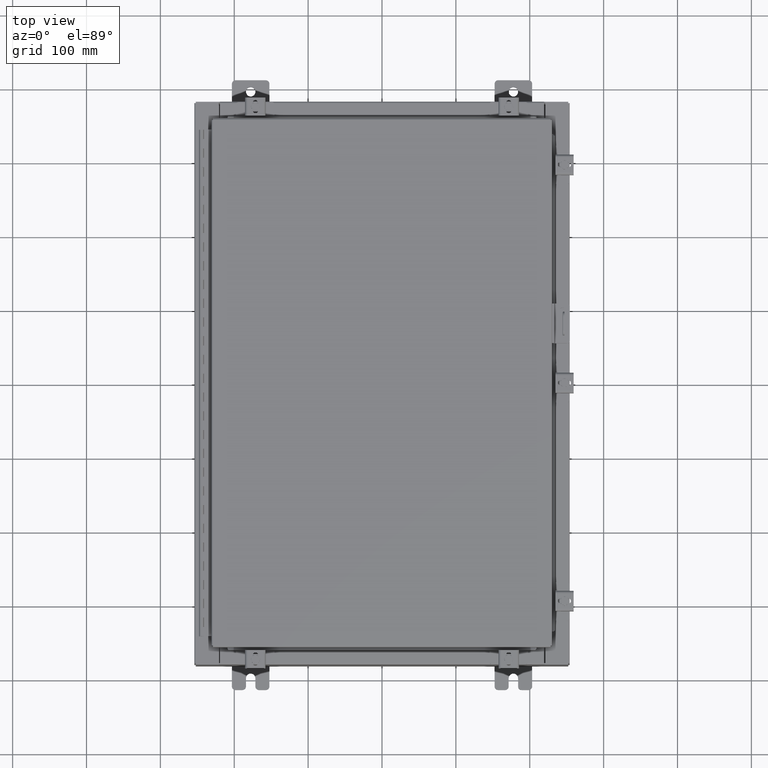
[diagram: clean part render]
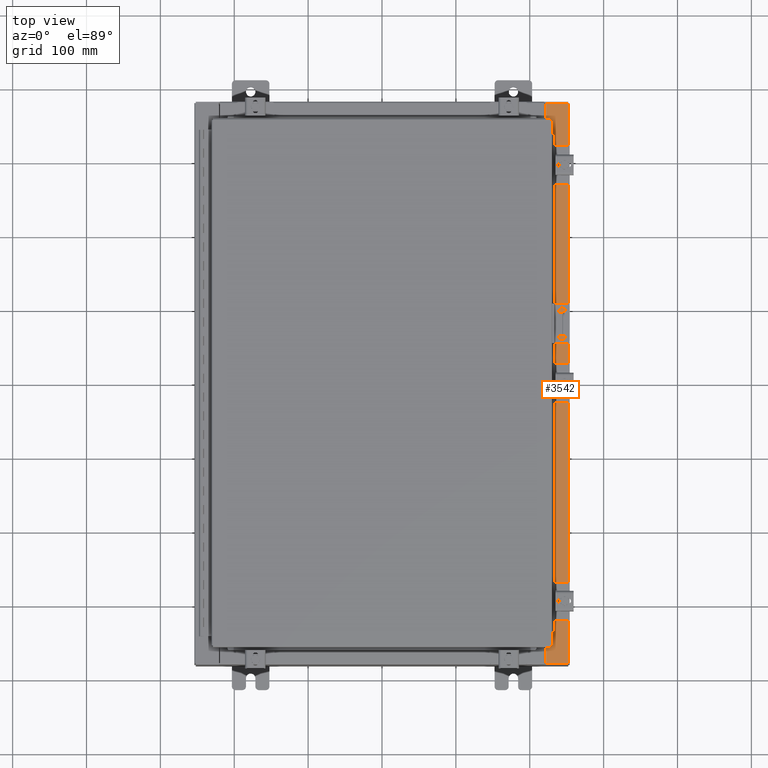
[diagram: same view with one face highlighted and labeled with its STEP entity id]
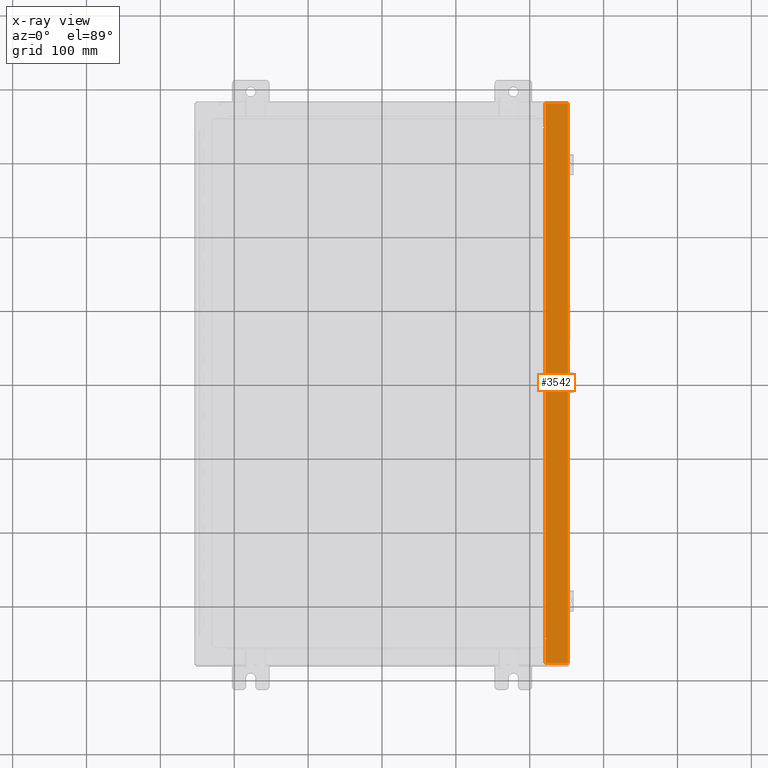
[diagram: x-ray of the same camera — body ghosted, the highlighted face saturated]
A machine part, top view. The second image highlights one B-rep face of the part: STEP entity #3542.
The next image is the same camera in x-ray: the body ghosted, the highlighted face saturated — about 0% of this face is hidden behind the body in this view.
In plain terms, the highlighted planar face has unit normal (-0, 0, -1).
Its self-contained STEP definition (entity closure, byte-faithful):
#17 = LINE ( 'NONE', #31061, #30291 ) ;
#97 = AXIS2_PLACEMENT_3D ( 'NONE', #5254, #25759, #8230 ) ;
#597 = EDGE_CURVE ( 'NONE', #18157, #23321, #25486, .T. ) ;
#844 = VECTOR ( 'NONE', #18691, 39.37007874015748100 ) ;
#959 = VERTEX_POINT ( 'NONE', #26658 ) ;
#1253 = DIRECTION ( 'NONE',  ( 1.000000000000000000, 0.0000000000000000000, 0.0000000000000000000 ) ) ;
#1660 = CARTESIAN_POINT ( 'NONE',  ( 8.750050000000021200, -13.59375000000000000, 5.925300000000009800 ) ) ;
#1833 = DIRECTION ( 'NONE',  ( 0.0000000000000000000, -1.000000000000000000, 0.0000000000000000000 ) ) ;
#2994 = ORIENTED_EDGE ( 'NONE', *, *, #13019, .T. ) ;
#3542 = ADVANCED_FACE ( 'NONE', ( #35391 ), #19665, .F. ) ;
#4178 = CARTESIAN_POINT ( 'NONE',  ( 8.699700000000019500, -13.63109999999999800, 5.925300000000009800 ) ) ;
#4904 = CARTESIAN_POINT ( 'NONE',  ( 8.699700000000019500, -13.63109999999999800, 5.925300000000009800 ) ) ;
#5179 = EDGE_CURVE ( 'NONE', #30932, #31928, #11431, .T. ) ;
#5254 = CARTESIAN_POINT ( 'NONE',  ( 8.750050000000021200, -13.61242500000000000, 5.925300000000009800 ) ) ;
#5496 = VERTEX_POINT ( 'NONE', #35802 ) ;
#6297 = CARTESIAN_POINT ( 'NONE',  ( 8.712700000000021200, 13.59375000000000900, 5.925300000000009800 ) ) ;
#6884 = CARTESIAN_POINT ( 'NONE',  ( 6.913922522753119200E-014, -14.92530000000001400, 5.925300000000072800 ) ) ;
#7024 = DIRECTION ( 'NONE',  ( 1.000000000000000000, 1.783190596386595000E-015, -7.132762385546378400E-015 ) ) ;
#8230 = DIRECTION ( 'NONE',  ( 1.000000000000000000, 0.0000000000000000000, 0.0000000000000000000 ) ) ;
#8318 = CARTESIAN_POINT ( 'NONE',  ( 8.750050000000021200, 13.63110000000000700, 5.925300000000009800 ) ) ;
#8679 = LINE ( 'NONE', #27410, #844 ) ;
#9698 = LINE ( 'NONE', #24895, #32132 ) ;
#9887 = LINE ( 'NONE', #6884, #32320 ) ;
#9934 = ORIENTED_EDGE ( 'NONE', *, *, #10434, .F. ) ;
#10405 = DIRECTION ( 'NONE',  ( -1.000000000000000000, 0.0000000000000000000, 0.0000000000000000000 ) ) ;
#10434 = EDGE_CURVE ( 'NONE', #23321, #37790, #33357, .T. ) ;
#10900 = VECTOR ( 'NONE', #10405, 39.37007874015748100 ) ;
#11431 = LINE ( 'NONE', #19699, #20135 ) ;
#12034 = LINE ( 'NONE', #19803, #26695 ) ;
#12248 = ORIENTED_EDGE ( 'NONE', *, *, #35858, .F. ) ;
#13019 = EDGE_CURVE ( 'NONE', #37571, #31928, #35022, .T. ) ;
#13272 = ORIENTED_EDGE ( 'NONE', *, *, #5179, .F. ) ;
#14668 = CIRCLE ( 'NONE', #24891, 0.01867499999999949400 ) ;
#14767 = CARTESIAN_POINT ( 'NONE',  ( 8.750050000000021200, -13.59375000000000000, 5.925300000000009800 ) ) ;
#15069 = EDGE_CURVE ( 'NONE', #28936, #19396, #9887, .T. ) ;
#15427 = CARTESIAN_POINT ( 'NONE',  ( 8.712700000000021200, -13.59375000000000000, 5.925300000000009800 ) ) ;
#15448 = ORIENTED_EDGE ( 'NONE', *, *, #27728, .F. ) ;
#15545 = CARTESIAN_POINT ( 'NONE',  ( 8.750050000000021200, -13.63109999999999800, 5.925300000000009800 ) ) ;
#15919 = CARTESIAN_POINT ( 'NONE',  ( 8.750050000000021200, 13.61242500000000900, 5.925300000000009800 ) ) ;
#16879 = DIRECTION ( 'NONE',  ( -0.0000000000000000000, 1.000000000000000000, -0.0000000000000000000 ) ) ;
#17471 = EDGE_CURVE ( 'NONE', #959, #37571, #9698, .T. ) ;
#17485 = ORIENTED_EDGE ( 'NONE', *, *, #18865, .F. ) ;
#17536 = EDGE_CURVE ( 'NONE', #33702, #28936, #17, .T. ) ;
#18157 = VERTEX_POINT ( 'NONE', #15545 ) ;
#18691 = DIRECTION ( 'NONE',  ( -0.0000000000000000000, -1.000000000000000000, -0.0000000000000000000 ) ) ;
#18829 = DIRECTION ( 'NONE',  ( 1.000000000000000000, 0.0000000000000000000, 0.0000000000000000000 ) ) ;
#18863 = AXIS2_PLACEMENT_3D ( 'NONE', #37321, #37441, #19915 ) ;
#18865 = EDGE_CURVE ( 'NONE', #33702, #18157, #28825, .T. ) ;
#19005 = EDGE_LOOP ( 'NONE', ( #17485, #37388, #21624, #15448, #24481, #2994, #13272, #21027, #20803, #12248, #9934, #25761 ) ) ;
#19396 = VERTEX_POINT ( 'NONE', #27598 ) ;
#19665 = PLANE ( 'NONE',  #18863 ) ;
#19699 = CARTESIAN_POINT ( 'NONE',  ( 8.750050000000021200, 13.63110000000000700, 5.925300000000009800 ) ) ;
#19803 = CARTESIAN_POINT ( 'NONE',  ( 8.712700000000021200, -13.59375000000000000, 5.925300000000009800 ) ) ;
#19915 = DIRECTION ( 'NONE',  ( -1.000000000000000000, 0.0000000000000000000, 7.132762385546378400E-015 ) ) ;
#20120 = VECTOR ( 'NONE', #36301, 39.37007874015748100 ) ;
#20135 = VECTOR ( 'NONE', #37231, 39.37007874015748100 ) ;
#20757 = DIRECTION ( 'NONE',  ( 0.0000000000000000000, -1.000000000000000000, 0.0000000000000000000 ) ) ;
#20803 = ORIENTED_EDGE ( 'NONE', *, *, #28359, .F. ) ;
#21027 = ORIENTED_EDGE ( 'NONE', *, *, #34205, .F. ) ;
#21624 = ORIENTED_EDGE ( 'NONE', *, *, #15069, .T. ) ;
#21956 = DIRECTION ( 'NONE',  ( -1.000000000000000000, 0.0000000000000000000, 7.132762385546378400E-015 ) ) ;
#23321 = VERTEX_POINT ( 'NONE', #14767 ) ;
#24481 = ORIENTED_EDGE ( 'NONE', *, *, #17471, .T. ) ;
#24499 = CARTESIAN_POINT ( 'NONE',  ( 8.699700000000019500, -14.92529999999999800, 5.925300000000009800 ) ) ;
#24768 = CARTESIAN_POINT ( 'NONE',  ( 8.699700000000019500, 13.63110000000000700, 5.925300000000009800 ) ) ;
#24891 = AXIS2_PLACEMENT_3D ( 'NONE', #15919, #36371, #18829 ) ;
#24895 = CARTESIAN_POINT ( 'NONE',  ( 4.252457061925311200E-014, 14.92530000000000500, 5.925300000000072800 ) ) ;
#25486 = CIRCLE ( 'NONE', #97, 0.01867499999999949400 ) ;
#25759 = DIRECTION ( 'NONE',  ( 7.132762385546378400E-015, 0.0000000000000000000, 1.000000000000000000 ) ) ;
#25761 = ORIENTED_EDGE ( 'NONE', *, *, #597, .F. ) ;
#26658 = CARTESIAN_POINT ( 'NONE',  ( 9.912300000000019700, 14.92530000000000700, 5.925300000000001800 ) ) ;
#26695 = VECTOR ( 'NONE', #16879, 39.37007874015748100 ) ;
#27239 = VECTOR ( 'NONE', #20757, 39.37007874015748100 ) ;
#27410 = CARTESIAN_POINT ( 'NONE',  ( 9.912300000000019700, -14.92529999999999800, 5.925300000000001800 ) ) ;
#27598 = CARTESIAN_POINT ( 'NONE',  ( 9.912300000000019700, -14.92529999999999800, 5.925300000000001800 ) ) ;
#27728 = EDGE_CURVE ( 'NONE', #959, #19396, #8679, .T. ) ;
#28359 = EDGE_CURVE ( 'NONE', #34021, #5496, #35710, .T. ) ;
#28825 = LINE ( 'NONE', #4178, #34782 ) ;
#28936 = VERTEX_POINT ( 'NONE', #24499 ) ;
#30291 = VECTOR ( 'NONE', #1833, 39.37007874015748100 ) ;
#30932 = VERTEX_POINT ( 'NONE', #8318 ) ;
#31061 = CARTESIAN_POINT ( 'NONE',  ( 8.699700000000019500, 0.0000000000000000000, 5.925300000000009800 ) ) ;
#31693 = CARTESIAN_POINT ( 'NONE',  ( 8.699700000000019500, 14.92530000000000700, 5.925300000000009800 ) ) ;
#31928 = VERTEX_POINT ( 'NONE', #24768 ) ;
#32132 = VECTOR ( 'NONE', #21956, 39.37007874015748100 ) ;
#32320 = VECTOR ( 'NONE', #7024, 39.37007874015748100 ) ;
#33357 = LINE ( 'NONE', #1660, #10900 ) ;
#33394 = CARTESIAN_POINT ( 'NONE',  ( 8.712700000000021200, 13.59375000000000900, 5.925300000000009800 ) ) ;
#33702 = VERTEX_POINT ( 'NONE', #4904 ) ;
#34021 = VERTEX_POINT ( 'NONE', #6297 ) ;
#34205 = EDGE_CURVE ( 'NONE', #5496, #30932, #14668, .T. ) ;
#34782 = VECTOR ( 'NONE', #1253, 39.37007874015748100 ) ;
#35022 = LINE ( 'NONE', #35362, #27239 ) ;
#35362 = CARTESIAN_POINT ( 'NONE',  ( 8.699700000000019500, 0.0000000000000000000, 5.925300000000009800 ) ) ;
#35391 = FACE_OUTER_BOUND ( 'NONE', #19005, .T. ) ;
#35710 = LINE ( 'NONE', #33394, #20120 ) ;
#35802 = CARTESIAN_POINT ( 'NONE',  ( 8.750050000000021200, 13.59375000000000900, 5.925300000000009800 ) ) ;
#35858 = EDGE_CURVE ( 'NONE', #37790, #34021, #12034, .T. ) ;
#36301 = DIRECTION ( 'NONE',  ( 1.000000000000000000, 0.0000000000000000000, 0.0000000000000000000 ) ) ;
#36371 = DIRECTION ( 'NONE',  ( 7.132762385546378400E-015, 0.0000000000000000000, 1.000000000000000000 ) ) ;
#37231 = DIRECTION ( 'NONE',  ( -1.000000000000000000, 0.0000000000000000000, 0.0000000000000000000 ) ) ;
#37321 = CARTESIAN_POINT ( 'NONE',  ( 4.252457061925311200E-014, 0.0000000000000000000, 5.925300000000072800 ) ) ;
#37388 = ORIENTED_EDGE ( 'NONE', *, *, #17536, .T. ) ;
#37441 = DIRECTION ( 'NONE',  ( -7.132762385546378400E-015, 0.0000000000000000000, -1.000000000000000000 ) ) ;
#37571 = VERTEX_POINT ( 'NONE', #31693 ) ;
#37790 = VERTEX_POINT ( 'NONE', #15427 ) ;